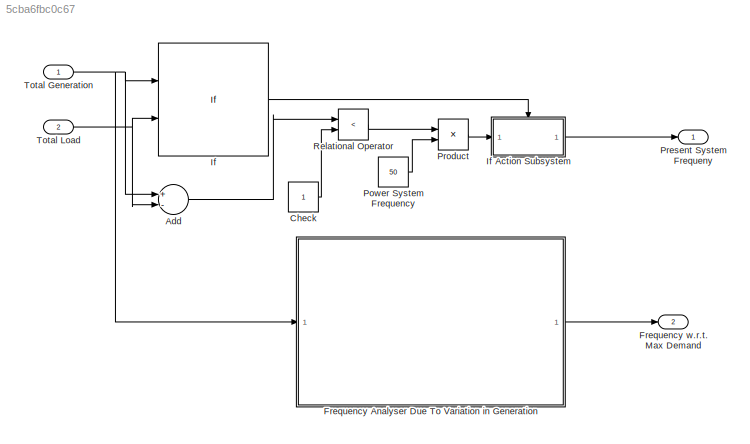
MODEL slx_5cba6fbc0c67
KIND model
BLOCK [Sum] Add
  InputSameDT = off
  Inputs = +-
  OutDataTypeStr = Inherit: Inherit via internal rule
  Ports = [2, 1]
  SaturateOnIntegerOverflow = off
BLOCK [Constant] Check
BLOCK [ModelReference] Frequency Analyser Due To Variation in Generation
  CopyOfModelName = F_V_G.slx
  DefaultDataLogging = on
  ModelNameDialog = F_V_G.slx
  ModelReferenceVersion = 1.5
  Ports = [1, 1]
BLOCK [Outport] Frequency w.r.t. Max Demand
  IconDisplay = Port number
  Port = 2
BLOCK [If] If
  IfExpression = u1 >0 & u2>0
  NumInputs = 2
  Ports = [2, 1]
  ShowElse = off
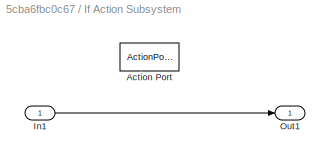
BLOCK [SubSystem] If Action Subsystem
  FunctionWithSeparateData = off
  MaskHideContents = off
  MinAlgLoopOccurrences = off
  Opaque = off
  Ports = [1, 1, 0, 0, 0, 0, 0, 1]
  PropExecContextOutsideSubsystem = off
  RTWSystemCode = Auto
  RequestExecContextInheritance = off
  TreatAsAtomicUnit = on
BLOCK [ActionPort] If Action Subsystem/Action Port
  ActionType = then
BLOCK [Inport] If Action Subsystem/In1
  IconDisplay = Port number
BLOCK [Outport] If Action Subsystem/Out1
  IconDisplay = Port number
BLOCK [Constant] Power System Frequency
  Value = 50
BLOCK [Outport] Present System Frequeny
  IconDisplay = Port number
BLOCK [Product] Product
  InputSameDT = off
  OutDataTypeStr = Inherit: Inherit via internal rule
  Ports = [2, 1]
  RndMeth = Floor
  SaturateOnIntegerOverflow = off
BLOCK [RelationalOperator] Relational Operator
  InputSameDT = off
  Operator = <
  OutDataTypeStr = boolean
  Ports = [2, 1]
BLOCK [Inport] Total Generation
  IconDisplay = Port number
BLOCK [Inport] Total Load
  IconDisplay = Port number
  Port = 2
LINE Add:1 -> Relational Operator:1
LINE Check:1 -> Relational Operator:2
LINE Frequency Analyser Due To Variation in Generation:1 -> Frequency w.r.t. Max Demand:1
LINE If Action Subsystem/In1:1 -> If Action Subsystem/Out1:1
LINE If Action Subsystem:1 -> Present System Frequeny:1
LINE If:1 -> If Action Subsystem:ifaction
LINE Power System Frequency:1 -> Product:2
LINE Product:1 -> If Action Subsystem:1
LINE Relational Operator:1 -> Product:1
NET Total Generation:1 -> Add:1, Frequency Analyser Due To Variation in Generation:1, If:1
NET Total Load:1 -> Add:2, If:2
note: NET lines group one-source signal fan-out (src -> all destinations, sorted); 1:1 wires keep LINE
